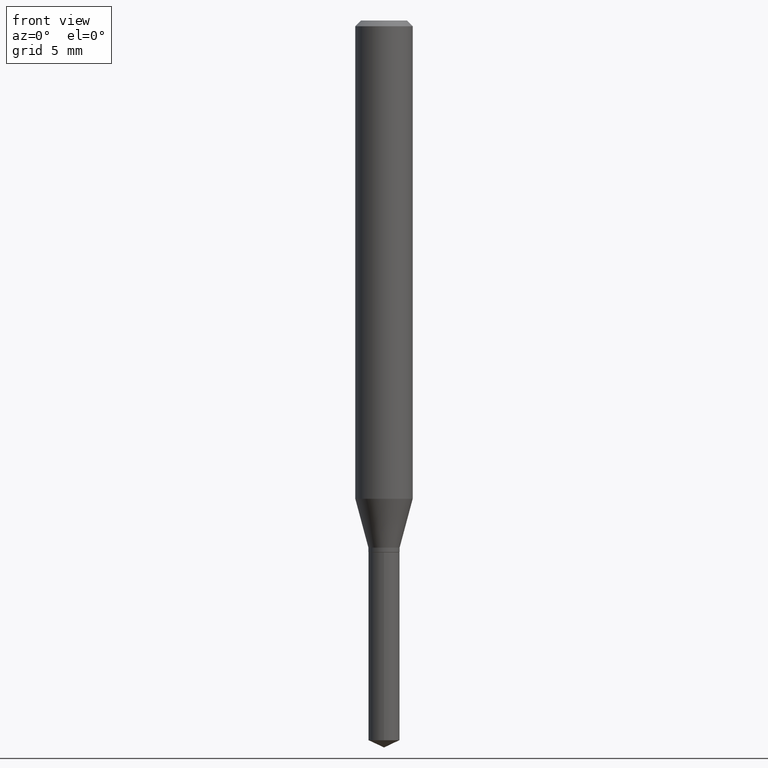
[diagram: clean part render]
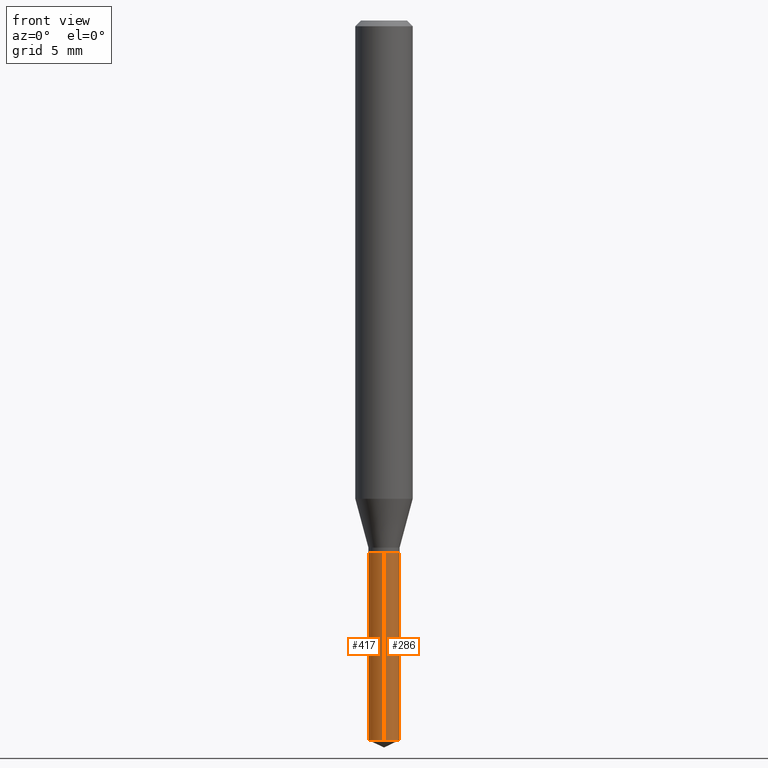
[diagram: same view with one multi-face feature highlighted, each face labeled with its STEP entity id]
A machine part, front view. The highlighted faces form ONE feature: a constant-radius fillet chain: 2 tangent blend faces with common blend radius 0.8153 mm. The faces share edges in the B-rep.
Their STEP definitions:
[1] entity #417 (Cylinder):
#15 = EDGE_CURVE ( 'NONE', #275, #128, #193, .T. ) ;
#21 = EDGE_CURVE ( 'NONE', #163, #275, #168, .T. ) ;
#43 = DIRECTION ( 'NONE',  ( -6.982962677686265133E-15, -1.000000000000000000, 4.255214943402279650E-15 ) ) ;
#44 = ORIENTED_EDGE ( 'NONE', *, *, #21, .T. ) ;
#56 = DIRECTION ( 'NONE',  ( -2.445470214571802116E-29, 3.491479321953280158E-15, 1.000000000000000000 ) ) ;
#59 = CARTESIAN_POINT ( 'NONE',  ( 2.280842181790284230E-16, 0.03209999999999617326, -1.094500000000000028 ) ) ;
#65 = CARTESIAN_POINT ( 'NONE',  ( -2.241531019537023721E-16, -0.03210000000000381992, -1.094499999999999806 ) ) ;
#69 = CYLINDRICAL_SURFACE ( 'NONE', #264, 0.03209999999999999659 ) ;
#89 = DIRECTION ( 'NONE',  ( -6.982962677686265133E-15, -1.000000000000000000, 4.255214943402279650E-15 ) ) ;
#114 = DIRECTION ( 'NONE',  ( -2.445470214571802116E-29, 3.491479321953280158E-15, 1.000000000000000000 ) ) ;
#119 = ORIENTED_EDGE ( 'NONE', *, *, #349, .F. ) ;
#120 = CARTESIAN_POINT ( 'NONE',  ( -2.241531019537023721E-16, -0.03210000000000381992, -1.094499999999999806 ) ) ;
#128 = VERTEX_POINT ( 'NONE', #120 ) ;
#156 = FACE_OUTER_BOUND ( 'NONE', #384, .T. ) ;
#159 = ORIENTED_EDGE ( 'NONE', *, *, #364, .F. ) ;
#163 = VERTEX_POINT ( 'NONE', #361 ) ;
#168 = CIRCLE ( 'NONE', #317, 0.03209999999999999659 ) ;
#177 = VECTOR ( 'NONE', #181, 39.37007874015748143 ) ;
#180 = CARTESIAN_POINT ( 'NONE',  ( 2.676565608369631794E-29, -3.821426325363822773E-15, -1.094499999999999806 ) ) ;
#181 = DIRECTION ( 'NONE',  ( -2.445470214571802396E-29, 3.491479321953280158E-15, 1.000000000000000000 ) ) ;
#188 = VERTEX_POINT ( 'NONE', #59 ) ;
#193 = LINE ( 'NONE', #65, #177 ) ;
#240 = VECTOR ( 'NONE', #478, 39.37007874015748143 ) ;
#264 = AXIS2_PLACEMENT_3D ( 'NONE', #311, #114, #43 ) ;
#275 = VERTEX_POINT ( 'NONE', #299 ) ;
#299 = CARTESIAN_POINT ( 'NONE',  ( -2.241531019536929551E-16, -0.03210000000000517301, -1.481131524173224578 ) ) ;
#311 = CARTESIAN_POINT ( 'NONE',  ( 2.676565608369631794E-29, -3.821426325363822773E-15, -1.094499999999999806 ) ) ;
#317 = AXIS2_PLACEMENT_3D ( 'NONE', #341, #485, #390 ) ;
#336 = CARTESIAN_POINT ( 'NONE',  ( 2.280842181790188581E-16, 0.03209999999999617326, -1.094500000000000028 ) ) ;
#341 = CARTESIAN_POINT ( 'NONE',  ( 3.622061484749750014E-29, -5.171342297229916227E-15, -1.481131524173224578 ) ) ;
#349 = EDGE_CURVE ( 'NONE', #188, #128, #366, .T. ) ;
#350 = ORIENTED_EDGE ( 'NONE', *, *, #15, .T. ) ;
#361 = CARTESIAN_POINT ( 'NONE',  ( 2.280842181790283737E-16, 0.03209999999999482712, -1.481131524173224578 ) ) ;
#364 = EDGE_CURVE ( 'NONE', #163, #188, #490, .T. ) ;
#366 = CIRCLE ( 'NONE', #438, 0.03209999999999999659 ) ;
#384 = EDGE_LOOP ( 'NONE', ( #159, #44, #350, #119 ) ) ;
#390 = DIRECTION ( 'NONE',  ( -6.982962677686265133E-15, -1.000000000000000000, 0.000000000000000000 ) ) ;
#417 = ADVANCED_FACE ( 'NONE', ( #156 ), #69, .T. ) ;
#438 = AXIS2_PLACEMENT_3D ( 'NONE', #180, #56, #89 ) ;
#478 = DIRECTION ( 'NONE',  ( -2.445470214571802396E-29, 3.491479321953280158E-15, 1.000000000000000000 ) ) ;
#485 = DIRECTION ( 'NONE',  ( -2.445470214571802116E-29, 3.491479321953280158E-15, 1.000000000000000000 ) ) ;
#490 = LINE ( 'NONE', #336, #240 ) ;
[2] entity #286 (Cylinder):
#15 = EDGE_CURVE ( 'NONE', #275, #128, #193, .T. ) ;
#27 = ORIENTED_EDGE ( 'NONE', *, *, #470, .T. ) ;
#54 = DIRECTION ( 'NONE',  ( -6.982962677686265133E-15, -1.000000000000000000, 4.255214943402279650E-15 ) ) ;
#59 = CARTESIAN_POINT ( 'NONE',  ( 2.280842181790284230E-16, 0.03209999999999617326, -1.094500000000000028 ) ) ;
#63 = ORIENTED_EDGE ( 'NONE', *, *, #364, .T. ) ;
#65 = CARTESIAN_POINT ( 'NONE',  ( -2.241531019537023721E-16, -0.03210000000000381992, -1.094499999999999806 ) ) ;
#68 = AXIS2_PLACEMENT_3D ( 'NONE', #320, #124, #118 ) ;
#113 = EDGE_LOOP ( 'NONE', ( #27, #63, #291, #460 ) ) ;
#118 = DIRECTION ( 'NONE',  ( -6.982962677686265133E-15, -1.000000000000000000, 0.000000000000000000 ) ) ;
#120 = CARTESIAN_POINT ( 'NONE',  ( -2.241531019537023721E-16, -0.03210000000000381992, -1.094499999999999806 ) ) ;
#124 = DIRECTION ( 'NONE',  ( -2.445470214571802116E-29, 3.491479321953280158E-15, 1.000000000000000000 ) ) ;
#128 = VERTEX_POINT ( 'NONE', #120 ) ;
#135 = CARTESIAN_POINT ( 'NONE',  ( 2.676565608369631794E-29, -3.821426325363822773E-15, -1.094499999999999806 ) ) ;
#163 = VERTEX_POINT ( 'NONE', #361 ) ;
#177 = VECTOR ( 'NONE', #181, 39.37007874015748143 ) ;
#178 = CARTESIAN_POINT ( 'NONE',  ( 2.676565608369631794E-29, -3.821426325363822773E-15, -1.094499999999999806 ) ) ;
#181 = DIRECTION ( 'NONE',  ( -2.445470214571802396E-29, 3.491479321953280158E-15, 1.000000000000000000 ) ) ;
#188 = VERTEX_POINT ( 'NONE', #59 ) ;
#193 = LINE ( 'NONE', #65, #177 ) ;
#196 = AXIS2_PLACEMENT_3D ( 'NONE', #178, #339, #483 ) ;
#212 = AXIS2_PLACEMENT_3D ( 'NONE', #135, #262, #54 ) ;
#218 = CYLINDRICAL_SURFACE ( 'NONE', #196, 0.03209999999999999659 ) ;
#230 = EDGE_CURVE ( 'NONE', #128, #188, #461, .T. ) ;
#240 = VECTOR ( 'NONE', #478, 39.37007874015748143 ) ;
#261 = FACE_OUTER_BOUND ( 'NONE', #113, .T. ) ;
#262 = DIRECTION ( 'NONE',  ( -2.445470214571802116E-29, 3.491479321953280158E-15, 1.000000000000000000 ) ) ;
#275 = VERTEX_POINT ( 'NONE', #299 ) ;
#286 = ADVANCED_FACE ( 'NONE', ( #261 ), #218, .T. ) ;
#291 = ORIENTED_EDGE ( 'NONE', *, *, #230, .F. ) ;
#299 = CARTESIAN_POINT ( 'NONE',  ( -2.241531019536929551E-16, -0.03210000000000517301, -1.481131524173224578 ) ) ;
#320 = CARTESIAN_POINT ( 'NONE',  ( 3.622061484749750014E-29, -5.171342297229916227E-15, -1.481131524173224578 ) ) ;
#336 = CARTESIAN_POINT ( 'NONE',  ( 2.280842181790188581E-16, 0.03209999999999617326, -1.094500000000000028 ) ) ;
#339 = DIRECTION ( 'NONE',  ( -2.445470214571802116E-29, 3.491479321953280158E-15, 1.000000000000000000 ) ) ;
#361 = CARTESIAN_POINT ( 'NONE',  ( 2.280842181790283737E-16, 0.03209999999999482712, -1.481131524173224578 ) ) ;
#364 = EDGE_CURVE ( 'NONE', #163, #188, #490, .T. ) ;
#371 = CIRCLE ( 'NONE', #68, 0.03209999999999999659 ) ;
#460 = ORIENTED_EDGE ( 'NONE', *, *, #15, .F. ) ;
#461 = CIRCLE ( 'NONE', #212, 0.03209999999999999659 ) ;
#470 = EDGE_CURVE ( 'NONE', #275, #163, #371, .T. ) ;
#478 = DIRECTION ( 'NONE',  ( -2.445470214571802396E-29, 3.491479321953280158E-15, 1.000000000000000000 ) ) ;
#483 = DIRECTION ( 'NONE',  ( -6.982962677686265133E-15, -1.000000000000000000, 4.255214943402279650E-15 ) ) ;
#490 = LINE ( 'NONE', #336, #240 ) ;